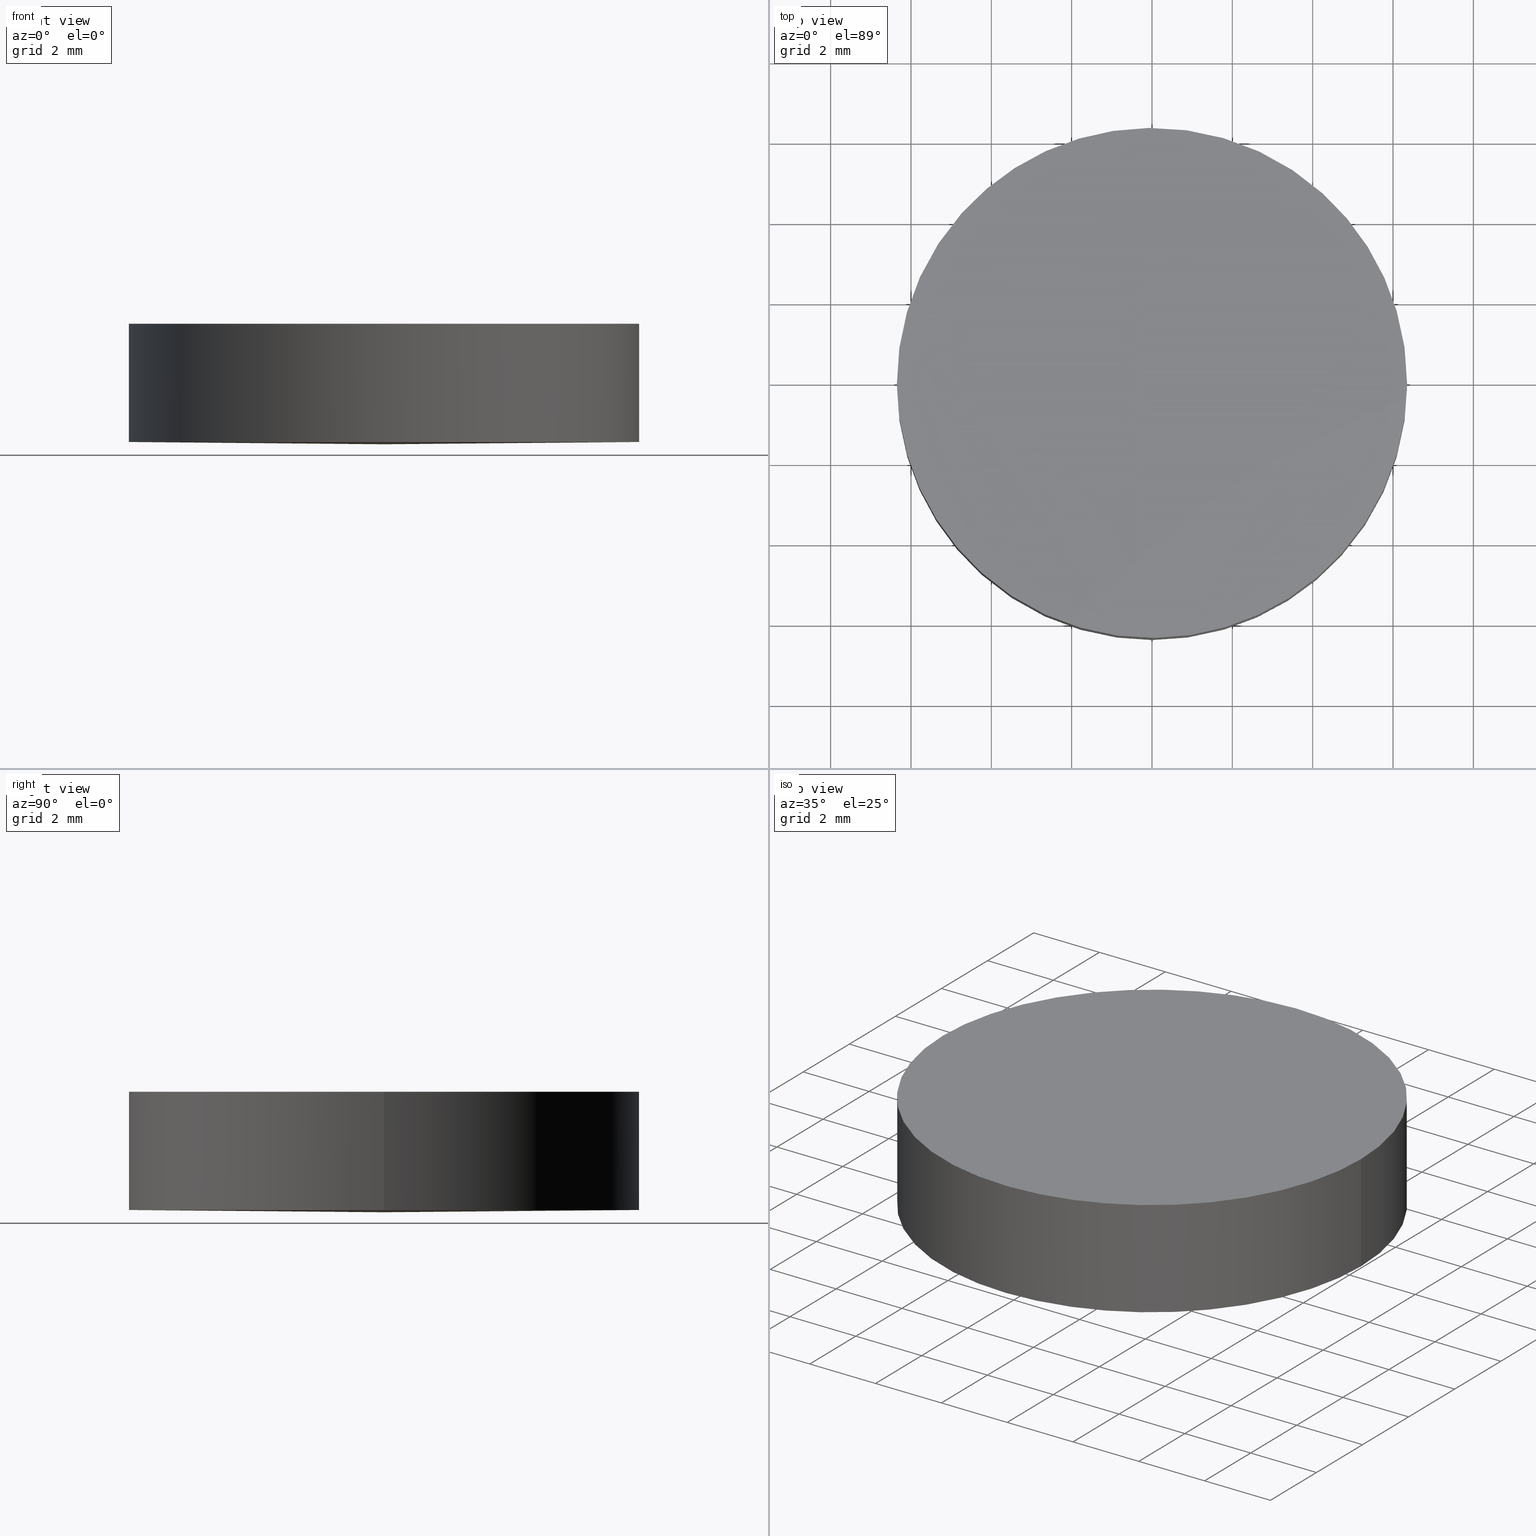
[diagram: canonical four-view strip — front | top / right | iso, engineering-drawing reading convention]
A machine part, canonical four-view strip (front | top / right | iso — engineering-drawing reading convention). The complete STEP part file that produces these views, byte-faithful:
ISO-10303-21;
HEADER;
FILE_DESCRIPTION (( 'STEP AP203' ),
    '1' );
FILE_NAME ('110-1141E UVFS pl-cx 12.7 F750.STEP',
    '2019-10-01T07:18:35',
    ( '' ),
    ( '' ),
    'SwSTEP 2.0',
    'SolidWorks 2019',
    '' );
FILE_SCHEMA (( 'CONFIG_CONTROL_DESIGN' ));
ENDSEC;

DATA;
#1 = DATE_TIME_ROLE ( 'classification_date' ) ;
#2 = LOCAL_TIME ( 10, 18, 35.00000000000000000, #93 ) ;
#3 = ADVANCED_FACE ( 'NONE', ( #127 ), #173, .T. ) ;
#4 = ORIENTED_EDGE ( 'NONE', *, *, #10, .T. ) ;
#5 = UNCERTAINTY_MEASURE_WITH_UNIT (LENGTH_MEASURE( 1.000000000000000082E-05 ), #137, 'distance_accuracy_value', 'NONE');
#6 = CARTESIAN_POINT ( 'NONE',  ( 3.888253587292850026E-16, 6.349999999999999645, 3.000000000000000000 ) ) ;
#7 = APPROVAL_STATUS ( 'not_yet_approved' ) ;
#8 = APPROVAL_PERSON_ORGANIZATION ( #138, #136, #62 ) ;
#9 =( BOUNDED_CURVE ( )  B_SPLINE_CURVE ( 2, ( #27, #90, #78, #135, #106 ),
 .UNSPECIFIED., .F., .F. ) 
 B_SPLINE_CURVE_WITH_KNOTS ( ( 3, 2, 3 ),
 ( 3.141592653589778461, 4.712388980384684345, 6.283185307179590673 ),
 .UNSPECIFIED. ) 
 CURVE ( )  GEOMETRIC_REPRESENTATION_ITEM ( )  RATIONAL_B_SPLINE_CURVE ( ( 1.000000000000002220, 0.7071067811865459074, 1.000000000000000000, 0.7071067811865480168, 1.000000000000000000 ) ) 
 REPRESENTATION_ITEM ( '' )  );
#10 = EDGE_CURVE ( 'NONE', #94, #46, #75, .T. ) ;
#11 = DIRECTION ( 'NONE',  ( 1.000000000000000000, 0.0000000000000000000, 0.0000000000000000000 ) ) ;
#12 = SECURITY_CLASSIFICATION ( '', '', #122 ) ;
#13 = CARTESIAN_POINT ( 'NONE',  ( -6.349999999999999645, 7.776507174585690191E-16, 0.05646273878587430156 ) ) ;
#14 = EDGE_CURVE ( 'NONE', #18, #58, #79, .T. ) ;
#15 = MANIFOLD_SOLID_BREP ( '110-1141E.STP', #39 ) ;
#16 = PERSON_AND_ORGANIZATION ( #84, #99 ) ;
#17 = DATE_TIME_ROLE ( 'creation_date' ) ;
#18 = VERTEX_POINT ( 'NONE', #51 ) ;
#19 = CALENDAR_DATE ( 2019, 1, 10 ) ;
#20 = CALENDAR_DATE ( 2019, 1, 10 ) ;
#21 = CARTESIAN_POINT ( 'NONE',  ( -6.349999999999999645, 7.776507174585690191E-16, 3.000000000000000000 ) ) ;
#22 = CC_DESIGN_APPROVAL ( #136, ( #117 ) ) ;
#23 = CARTESIAN_POINT ( 'NONE',  ( 2.498001805406600244E-16, 8.881784197001250351E-16, 0.05646273878587430156 ) ) ;
#24 = ADVANCED_FACE ( 'NONE', ( #113 ), #130, .T. ) ;
#25 = VECTOR ( 'NONE', #149, 1000.000000000000000 ) ;
#26 = CARTESIAN_POINT ( 'NONE',  ( 2.498001805406600244E-16, 8.881784197001250351E-16, 0.05646273878587430156 ) ) ;
#27 = CARTESIAN_POINT ( 'NONE',  ( -6.349999999999999645, 7.776507174585690191E-16, 0.05646273878587430156 ) ) ;
#28 = PERSON_AND_ORGANIZATION_ROLE ( 'design_owner' ) ;
#29 = CC_DESIGN_PERSON_AND_ORGANIZATION_ASSIGNMENT ( #98, #34, ( #117 ) ) ;
#30 = COORDINATED_UNIVERSAL_TIME_OFFSET ( 2, 0, .AHEAD. ) ;
#31 = AXIS2_PLACEMENT_3D ( 'NONE', #134, #66, #174 ) ;
#32 = ORIENTED_EDGE ( 'NONE', *, *, #14, .T. ) ;
#33 = APPROVAL_DATE_TIME ( #73, #43 ) ;
#34 = PERSON_AND_ORGANIZATION_ROLE ( 'creator' ) ;
#35 = APPROVAL_ROLE ( '' ) ;
#36 = ADVANCED_BREP_SHAPE_REPRESENTATION ( '110-1141E UVFS pl-cx 12.7 F750', ( #15, #132 ), #116 ) ;
#37 = ADVANCED_FACE ( 'NONE', ( #119 ), #54, .T. ) ;
#38 = CARTESIAN_POINT ( 'NONE',  ( 3.888253587292850026E-16, 6.349999999999999645, 0.05646273878587430156 ) ) ;
#39 = CLOSED_SHELL ( 'NONE', ( #3, #160, #24, #37 ) ) ;
#40 = LINE ( 'NONE', #161, #121 ) ;
#41 = DIRECTION ( 'NONE',  ( 0.0000000000000000000, 0.0000000000000000000, 1.000000000000000000 ) ) ;
#42 =( BOUNDED_CURVE ( )  B_SPLINE_CURVE ( 2, ( #115, #105, #91, #120, #162 ),
 .UNSPECIFIED., .F., .T. ) 
 B_SPLINE_CURVE_WITH_KNOTS ( ( 3, 2, 3 ),
 ( 3.141592653589778461, 4.712388980384684345, 6.283185307179590673 ),
 .UNSPECIFIED. ) 
 CURVE ( )  GEOMETRIC_REPRESENTATION_ITEM ( )  RATIONAL_B_SPLINE_CURVE ( ( 1.000000000000002220, 0.7071067811865459074, 1.000000000000000000, 0.7071067811865480168, 1.000000000000000000 ) ) 
 REPRESENTATION_ITEM ( '' )  );
#43 = APPROVAL ( #154, 'UNSPECIFIED' ) ;
#44 = PERSON_AND_ORGANIZATION_ROLE ( 'classification_officer' ) ;
#45 = AXIS2_PLACEMENT_3D ( 'NONE', #23, #102, #74 ) ;
#46 = VERTEX_POINT ( 'NONE', #13 ) ;
#47 = ORIENTED_EDGE ( 'NONE', *, *, #179, .T. ) ;
#48 = CALENDAR_DATE ( 2019, 1, 10 ) ;
#49 = APPLICATION_CONTEXT ( 'configuration controlled 3d designs of mechanical parts and assemblies' ) ;
#50 = CARTESIAN_POINT ( 'NONE',  ( -6.349999999999999645, 7.776507174585690191E-16, 0.05646273878587430156 ) ) ;
#51 = CARTESIAN_POINT ( 'NONE',  ( 6.349999999999999645, 0.0000000000000000000, 3.000000000000000000 ) ) ;
#52 = CC_DESIGN_SECURITY_CLASSIFICATION ( #12, ( #68 ) ) ;
#53 = DIRECTION ( 'NONE',  ( 0.0000000000000000000, 0.0000000000000000000, 1.000000000000000000 ) ) ;
#54 = CYLINDRICAL_SURFACE ( 'NONE', #151, 6.349999999999999645 ) ;
#55 = APPLICATION_CONTEXT ( 'configuration controlled 3d designs of mechanical parts and assemblies' ) ;
#56 = APPLICATION_PROTOCOL_DEFINITION ( 'international standard', 'config_control_design', 1994, #55 ) ;
#57 = ORIENTED_EDGE ( 'NONE', *, *, #179, .F. ) ;
#58 = VERTEX_POINT ( 'NONE', #176 ) ;
#59 = PERSON_AND_ORGANIZATION ( #84, #99 ) ;
#60 = AXIS2_PLACEMENT_3D ( 'NONE', #128, #53, #11 ) ;
#61 = ORIENTED_EDGE ( 'NONE', *, *, #157, .T. ) ;
#62 = APPROVAL_ROLE ( '' ) ;
#63 = CC_DESIGN_PERSON_AND_ORGANIZATION_ASSIGNMENT ( #16, #44, ( #12 ) ) ;
#64 = APPROVAL_DATE_TIME ( #172, #145 ) ;
#65 = CARTESIAN_POINT ( 'NONE',  ( 6.350000000000000533, 6.350000000000000533, 0.05646273878587431544 ) ) ;
#66 = DIRECTION ( 'NONE',  ( 0.0000000000000000000, 3.108997548656277290E-16, -1.000000000000000000 ) ) ;
#67 = DIRECTION ( 'NONE',  ( 0.0000000000000000000, 0.0000000000000000000, 1.000000000000000000 ) ) ;
#68 = PRODUCT_DEFINITION_FORMATION_WITH_SPECIFIED_SOURCE ( 'ANY', '', #165, .NOT_KNOWN. ) ;
#69 = CALENDAR_DATE ( 2019, 1, 10 ) ;
#70 = ORIENTED_EDGE ( 'NONE', *, *, #14, .F. ) ;
#71 = PERSON_AND_ORGANIZATION ( #84, #99 ) ;
#72 = CC_DESIGN_APPROVAL ( #43, ( #68 ) ) ;
#73 = DATE_AND_TIME ( #152, #167 ) ;
#74 = DIRECTION ( 'NONE',  ( 1.000000000000000000, -1.398706172756100243E-16, 0.0000000000000000000 ) ) ;
#75 =( BOUNDED_CURVE ( )  B_SPLINE_CURVE ( 2, ( #158, #65, #38, #171, #50 ),
 .UNSPECIFIED., .F., .T. ) 
 B_SPLINE_CURVE_WITH_KNOTS ( ( 3, 2, 3 ),
 ( 0.0000000000000000000, 1.570796326794894116, 3.141592653589778905 ),
 .UNSPECIFIED. ) 
 CURVE ( )  GEOMETRIC_REPRESENTATION_ITEM ( )  RATIONAL_B_SPLINE_CURVE ( ( 1.000000000000000000, 0.7071067811865480168, 1.000000000000000000, 0.7071067811865501263, 0.9999999999999978906 ) ) 
 REPRESENTATION_ITEM ( '' )  );
#76 = PRODUCT_RELATED_PRODUCT_CATEGORY ( 'detail', '', ( #165 ) ) ;
#77 = EDGE_CURVE ( 'NONE', #94, #18, #40, .T. ) ;
#78 = CARTESIAN_POINT ( 'NONE',  ( -1.166476076187850077E-15, -6.349999999999999645, 0.05646273878587430156 ) ) ;
#79 =( BOUNDED_CURVE ( )  B_SPLINE_CURVE ( 2, ( #100, #114, #6, #156, #21 ),
 .UNSPECIFIED., .F., .T. ) 
 B_SPLINE_CURVE_WITH_KNOTS ( ( 3, 2, 3 ),
 ( 0.0000000000000000000, 1.570796326794894116, 3.141592653589778905 ),
 .UNSPECIFIED. ) 
 CURVE ( )  GEOMETRIC_REPRESENTATION_ITEM ( )  RATIONAL_B_SPLINE_CURVE ( ( 1.000000000000000000, 0.7071067811865480168, 1.000000000000000000, 0.7071067811865501263, 0.9999999999999978906 ) ) 
 REPRESENTATION_ITEM ( '' )  );
#80 = PERSON_AND_ORGANIZATION_ROLE ( 'creator' ) ;
#81 = ORIENTED_EDGE ( 'NONE', *, *, #129, .T. ) ;
#82 = COORDINATED_UNIVERSAL_TIME_OFFSET ( 2, 0, .AHEAD. ) ;
#83 = ORIENTED_EDGE ( 'NONE', *, *, #77, .F. ) ;
#84 = PERSON ( 'UNSPECIFIED', 'UNSPECIFIED', 'UNSPECIFIED', ('UNSPECIFIED'), ('UNSPECIFIED'), ('UNSPECIFIED') ) ;
#85 = ORIENTED_EDGE ( 'NONE', *, *, #10, .F. ) ;
#86 = FACE_OUTER_BOUND ( 'NONE', #111, .T. ) ;
#87 = APPROVAL_PERSON_ORGANIZATION ( #131, #145, #147 ) ;
#88 = CC_DESIGN_PERSON_AND_ORGANIZATION_ASSIGNMENT ( #71, #124, ( #68 ) ) ;
#89 = CARTESIAN_POINT ( 'NONE',  ( -6.349999999999999645, 2.554007556858817709E-15, 0.05646273878587430156 ) ) ;
#90 = CARTESIAN_POINT ( 'NONE',  ( -6.350000000000066258, -6.349999999999999645, 0.05646273878587431544 ) ) ;
#91 = CARTESIAN_POINT ( 'NONE',  ( -1.166476076187850077E-15, -6.349999999999999645, 3.000000000000000000 ) ) ;
#92 = DATE_AND_TIME ( #19, #148 ) ;
#93 = COORDINATED_UNIVERSAL_TIME_OFFSET ( 2, 0, .AHEAD. ) ;
#94 = VERTEX_POINT ( 'NONE', #118 ) ;
#95 = APPROVAL_PERSON_ORGANIZATION ( #177, #43, #35 ) ;
#96 = APPROVAL_DATE_TIME ( #142, #136 ) ;
#97 = ORIENTED_EDGE ( 'NONE', *, *, #129, .F. ) ;
#98 = PERSON_AND_ORGANIZATION ( #84, #99 ) ;
#99 = ORGANIZATION ( 'UNSPECIFIED', 'UNSPECIFIED', '' ) ;
#100 = CARTESIAN_POINT ( 'NONE',  ( 6.349999999999999645, 0.0000000000000000000, 3.000000000000000000 ) ) ;
#101 = SHAPE_DEFINITION_REPRESENTATION ( #143, #36 ) ;
#102 = DIRECTION ( 'NONE',  ( 0.0000000000000000000, 0.0000000000000000000, 1.000000000000000000 ) ) ;
#103 = CC_DESIGN_DATE_AND_TIME_ASSIGNMENT ( #92, #17, ( #117 ) ) ;
#104 = SPHERICAL_SURFACE ( 'NONE', #31, 357.0999999999999659 ) ;
#105 = CARTESIAN_POINT ( 'NONE',  ( -6.350000000000066258, -6.349999999999999645, 3.000000000000000888 ) ) ;
#106 = CARTESIAN_POINT ( 'NONE',  ( 6.349999999999999645, 0.0000000000000000000, 0.05646273878587430156 ) ) ;
#107 = CARTESIAN_POINT ( 'NONE',  ( 0.0000000000000000000, 0.0000000000000000000, 0.0000000000000000000 ) ) ;
#108 =( NAMED_UNIT ( * ) SI_UNIT ( $, .STERADIAN. ) SOLID_ANGLE_UNIT ( ) );
#109 = DESIGN_CONTEXT ( 'detailed design', #55, 'design' ) ;
#110 =( NAMED_UNIT ( * ) PLANE_ANGLE_UNIT ( ) SI_UNIT ( $, .RADIAN. ) );
#111 = EDGE_LOOP ( 'NONE', ( #85, #133 ) ) ;
#112 = EDGE_LOOP ( 'NONE', ( #4, #47, #70, #83 ) ) ;
#113 = FACE_OUTER_BOUND ( 'NONE', #169, .T. ) ;
#114 = CARTESIAN_POINT ( 'NONE',  ( 6.350000000000000533, 6.350000000000000533, 3.000000000000001332 ) ) ;
#115 = CARTESIAN_POINT ( 'NONE',  ( -6.349999999999999645, 7.776507174585690191E-16, 3.000000000000000000 ) ) ;
#116 =( GEOMETRIC_REPRESENTATION_CONTEXT ( 3 ) GLOBAL_UNCERTAINTY_ASSIGNED_CONTEXT ( ( #5 ) ) GLOBAL_UNIT_ASSIGNED_CONTEXT ( ( #137, #110, #108 ) ) REPRESENTATION_CONTEXT ( 'NONE', 'WORKASPACE' ) );
#117 = PRODUCT_DEFINITION ( 'UNKNOWN', '', #68, #109 ) ;
#118 = CARTESIAN_POINT ( 'NONE',  ( 6.349999999999999645, 0.0000000000000000000, 0.05646273878587430156 ) ) ;
#119 = FACE_OUTER_BOUND ( 'NONE', #139, .T. ) ;
#120 = CARTESIAN_POINT ( 'NONE',  ( 6.350000000000000533, -6.350000000000000533, 3.000000000000001332 ) ) ;
#121 = VECTOR ( 'NONE', #67, 1000.000000000000000 ) ;
#122 = SECURITY_CLASSIFICATION_LEVEL ( 'unclassified' ) ;
#123 = DATE_AND_TIME ( #69, #2 ) ;
#124 = PERSON_AND_ORGANIZATION_ROLE ( 'design_supplier' ) ;
#125 = CC_DESIGN_APPROVAL ( #145, ( #12 ) ) ;
#126 = COORDINATED_UNIVERSAL_TIME_OFFSET ( 2, 0, .AHEAD. ) ;
#127 = FACE_OUTER_BOUND ( 'NONE', #112, .T. ) ;
#128 = CARTESIAN_POINT ( 'NONE',  ( 0.0000000000000000000, 13.15799999999999947, 3.000000000000000000 ) ) ;
#129 = EDGE_CURVE ( 'NONE', #58, #18, #42, .T. ) ;
#130 = PLANE ( 'NONE',  #60 ) ;
#131 = PERSON_AND_ORGANIZATION ( #84, #99 ) ;
#132 = AXIS2_PLACEMENT_3D ( 'NONE', #107, #178, #140 ) ;
#133 = ORIENTED_EDGE ( 'NONE', *, *, #157, .F. ) ;
#134 = CARTESIAN_POINT ( 'NONE',  ( -2.842170943040399481E-14, -2.842170943040399481E-14, 357.0999999999999659 ) ) ;
#135 = CARTESIAN_POINT ( 'NONE',  ( 6.350000000000000533, -6.350000000000000533, 0.05646273878587431544 ) ) ;
#136 = APPROVAL ( #153, 'UNSPECIFIED' ) ;
#137 =( LENGTH_UNIT ( ) NAMED_UNIT ( * ) SI_UNIT ( .MILLI., .METRE. ) );
#138 = PERSON_AND_ORGANIZATION ( #84, #99 ) ;
#139 = EDGE_LOOP ( 'NONE', ( #57, #61, #144, #97 ) ) ;
#140 = DIRECTION ( 'NONE',  ( 1.000000000000000000, 0.0000000000000000000, 0.0000000000000000000 ) ) ;
#141 = LOCAL_TIME ( 10, 18, 35.00000000000000000, #126 ) ;
#142 = DATE_AND_TIME ( #48, #141 ) ;
#143 = PRODUCT_DEFINITION_SHAPE ( 'NONE', 'NONE',  #117 ) ;
#144 = ORIENTED_EDGE ( 'NONE', *, *, #77, .T. ) ;
#145 = APPROVAL ( #7, 'UNSPECIFIED' ) ;
#146 = COORDINATED_UNIVERSAL_TIME_OFFSET ( 2, 0, .AHEAD. ) ;
#147 = APPROVAL_ROLE ( '' ) ;
#148 = LOCAL_TIME ( 10, 18, 35.00000000000000000, #30 ) ;
#149 = DIRECTION ( 'NONE',  ( 0.0000000000000000000, 0.0000000000000000000, 1.000000000000000000 ) ) ;
#150 = PERSON_AND_ORGANIZATION ( #84, #99 ) ;
#151 = AXIS2_PLACEMENT_3D ( 'NONE', #26, #41, #163 ) ;
#152 = CALENDAR_DATE ( 2019, 1, 10 ) ;
#153 = APPROVAL_STATUS ( 'not_yet_approved' ) ;
#154 = APPROVAL_STATUS ( 'not_yet_approved' ) ;
#155 = CC_DESIGN_PERSON_AND_ORGANIZATION_ASSIGNMENT ( #150, #80, ( #68 ) ) ;
#156 = CARTESIAN_POINT ( 'NONE',  ( -6.349999999999934808, 6.350000000000001421, 3.000000000000001776 ) ) ;
#157 = EDGE_CURVE ( 'NONE', #46, #94, #9, .T. ) ;
#158 = CARTESIAN_POINT ( 'NONE',  ( 6.349999999999999645, 0.0000000000000000000, 0.05646273878587430156 ) ) ;
#159 = LINE ( 'NONE', #89, #25 ) ;
#160 = ADVANCED_FACE ( 'NONE', ( #86 ), #104, .T. ) ;
#161 = CARTESIAN_POINT ( 'NONE',  ( 6.349999999999999645, 1.540743955509788682E-30, 0.05646273878587430156 ) ) ;
#162 = CARTESIAN_POINT ( 'NONE',  ( 6.349999999999999645, 0.0000000000000000000, 3.000000000000000000 ) ) ;
#163 = DIRECTION ( 'NONE',  ( 1.000000000000000000, -1.398706172756100243E-16, 0.0000000000000000000 ) ) ;
#164 = CC_DESIGN_PERSON_AND_ORGANIZATION_ASSIGNMENT ( #59, #28, ( #165 ) ) ;
#165 = PRODUCT ( '110-1141E UVFS pl-cx 12.7 F750', '110-1141E UVFS pl-cx 12.7 F750', '', ( #166 ) ) ;
#166 = MECHANICAL_CONTEXT ( 'NONE', #49, 'mechanical' ) ;
#167 = LOCAL_TIME ( 10, 18, 35.00000000000000000, #82 ) ;
#168 = APPLICATION_PROTOCOL_DEFINITION ( 'international standard', 'config_control_design', 1994, #49 ) ;
#169 = EDGE_LOOP ( 'NONE', ( #32, #81 ) ) ;
#170 = LOCAL_TIME ( 10, 18, 35.00000000000000000, #146 ) ;
#171 = CARTESIAN_POINT ( 'NONE',  ( -6.349999999999934808, 6.350000000000001421, 0.05646273878587432238 ) ) ;
#172 = DATE_AND_TIME ( #20, #170 ) ;
#173 = CYLINDRICAL_SURFACE ( 'NONE', #45, 6.349999999999999645 ) ;
#174 = DIRECTION ( 'NONE',  ( 0.0000000000000000000, -1.000000000000000000, -3.108997548656277290E-16 ) ) ;
#175 = CC_DESIGN_DATE_AND_TIME_ASSIGNMENT ( #123, #1, ( #12 ) ) ;
#176 = CARTESIAN_POINT ( 'NONE',  ( -6.349999999999999645, 7.776507174585690191E-16, 3.000000000000000000 ) ) ;
#177 = PERSON_AND_ORGANIZATION ( #84, #99 ) ;
#178 = DIRECTION ( 'NONE',  ( 0.0000000000000000000, 0.0000000000000000000, 1.000000000000000000 ) ) ;
#179 = EDGE_CURVE ( 'NONE', #46, #58, #159, .T. ) ;
ENDSEC;
END-ISO-10303-21;
